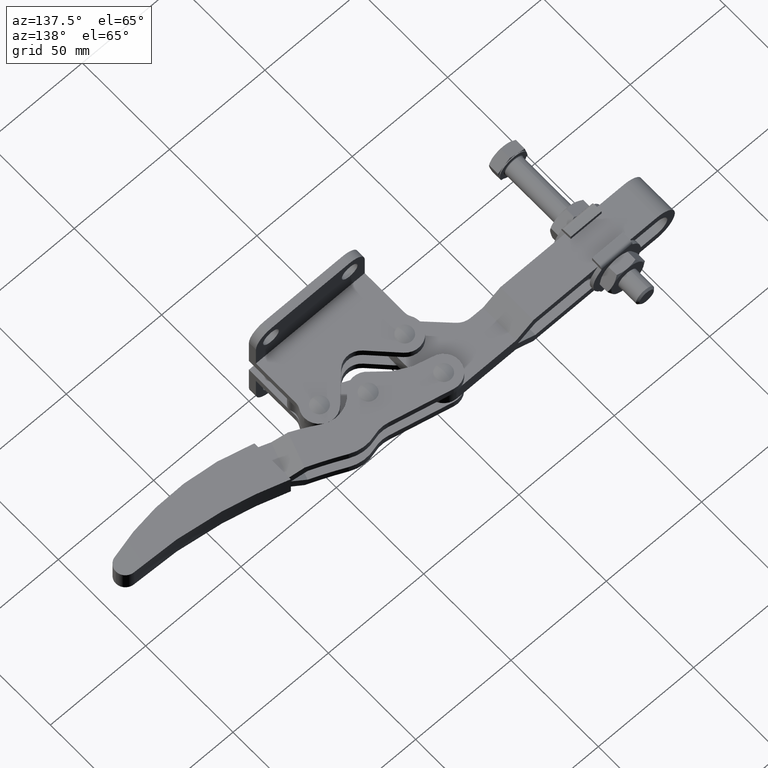
[diagram: clean part render]
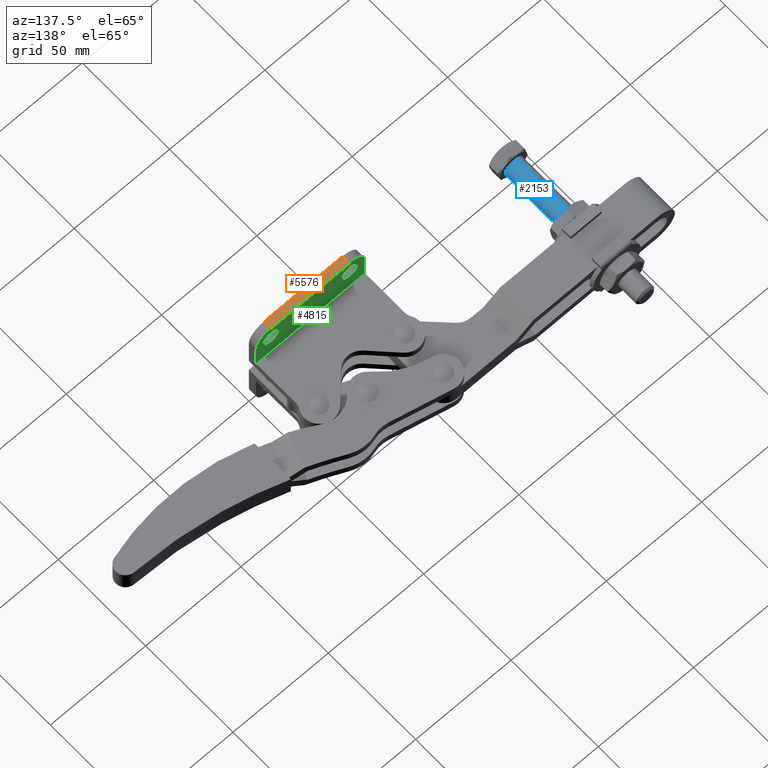
[diagram: same view with three faces highlighted in distinct colors, each labeled with its STEP entity id]
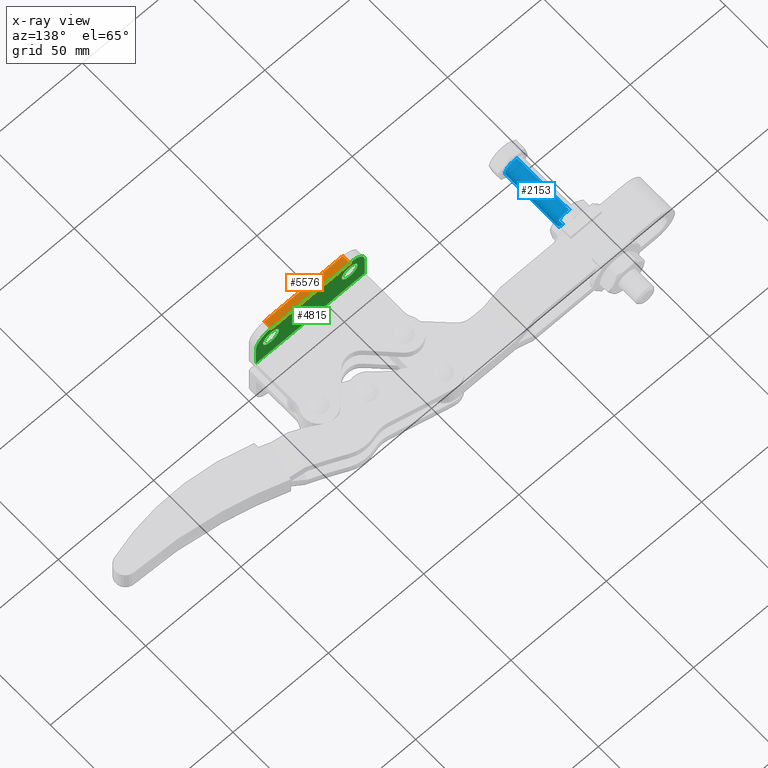
[diagram: x-ray of the same camera — body ghosted, the three highlighted faces saturated]
A machine part, auxiliary view with three faces highlighted in distinct colors.
The next image is the same camera in x-ray (body ghosted, the three faces saturated) — at least one of them is partly hidden behind the body in this view.
Their STEP definitions:

[orange] entity #5576 — the highlighted planar face has unit normal (-0, 0, 1).
#433 = CARTESIAN_POINT ( 'NONE',  ( -7.950000000000054400, 4.000000000000000000, 24.59999999999990500 ) ) ;
#499 = PLANE ( 'NONE',  #6251 ) ;
#1027 = ORIENTED_EDGE ( 'NONE', *, *, #6109, .F. ) ;
#1246 = ORIENTED_EDGE ( 'NONE', *, *, #8099, .F. ) ;
#1365 = DIRECTION ( 'NONE',  ( -7.073629707866492300E-015, 0.0000000000000000000, 1.000000000000000000 ) ) ;
#1386 = ORIENTED_EDGE ( 'NONE', *, *, #3077, .T. ) ;
#1631 = VERTEX_POINT ( 'NONE', #8105 ) ;
#1785 = CARTESIAN_POINT ( 'NONE',  ( -49.15000000000062400, 4.000000000000000000, 24.59999999999961400 ) ) ;
#2095 = VECTOR ( 'NONE', #3051, 1000.000000000000000 ) ;
#2903 = CARTESIAN_POINT ( 'NONE',  ( -7.950000000000054400, 4.000000000000000000, 24.59999999999990500 ) ) ;
#3051 = DIRECTION ( 'NONE',  ( -1.000000000000000000, 0.0000000000000000000, -7.073629707866493900E-015 ) ) ;
#3077 = EDGE_CURVE ( 'NONE', #1631, #10489, #8617, .T. ) ;
#3885 = FACE_OUTER_BOUND ( 'NONE', #8575, .T. ) ;
#3911 = EDGE_CURVE ( 'NONE', #10489, #5930, #10694, .T. ) ;
#4214 = VECTOR ( 'NONE', #10713, 1000.000000000000000 ) ;
#4338 = LINE ( 'NONE', #8125, #2095 ) ;
#4623 = VECTOR ( 'NONE', #9247, 1000.000000000000000 ) ;
#5073 = VECTOR ( 'NONE', #7985, 1000.000000000000000 ) ;
#5365 = CARTESIAN_POINT ( 'NONE',  ( -49.15000000000062400, 0.0000000000000000000, 24.59999999999961400 ) ) ;
#5499 = VERTEX_POINT ( 'NONE', #6352 ) ;
#5576 = ADVANCED_FACE ( 'NONE', ( #3885 ), #499, .T. ) ;
#5657 = ORIENTED_EDGE ( 'NONE', *, *, #3911, .T. ) ;
#5930 = VERTEX_POINT ( 'NONE', #5365 ) ;
#6109 = EDGE_CURVE ( 'NONE', #5499, #5930, #4338, .T. ) ;
#6251 = AXIS2_PLACEMENT_3D ( 'NONE', #433, #1365, #7291 ) ;
#6352 = CARTESIAN_POINT ( 'NONE',  ( -7.950000000000054400, 0.0000000000000000000, 24.59999999999990500 ) ) ;
#7291 = DIRECTION ( 'NONE',  ( 1.000000000000000000, 0.0000000000000000000, 7.073629707866492300E-015 ) ) ;
#7985 = DIRECTION ( 'NONE',  ( 0.0000000000000000000, -1.000000000000000000, 0.0000000000000000000 ) ) ;
#8099 = EDGE_CURVE ( 'NONE', #1631, #5499, #9557, .T. ) ;
#8105 = CARTESIAN_POINT ( 'NONE',  ( -7.950000000000054400, 4.000000000000000000, 24.59999999999990500 ) ) ;
#8125 = CARTESIAN_POINT ( 'NONE',  ( -7.950000000000054400, 0.0000000000000000000, 24.59999999999990500 ) ) ;
#8575 = EDGE_LOOP ( 'NONE', ( #1027, #1246, #1386, #5657 ) ) ;
#8617 = LINE ( 'NONE', #10138, #4623 ) ;
#9247 = DIRECTION ( 'NONE',  ( -1.000000000000000000, 0.0000000000000000000, -7.073629707866493900E-015 ) ) ;
#9557 = LINE ( 'NONE', #2903, #5073 ) ;
#10138 = CARTESIAN_POINT ( 'NONE',  ( -7.950000000000054400, 4.000000000000000000, 24.59999999999990500 ) ) ;
#10489 = VERTEX_POINT ( 'NONE', #1785 ) ;
#10680 = CARTESIAN_POINT ( 'NONE',  ( -49.15000000000062400, 4.000000000000000000, 24.59999999999961400 ) ) ;
#10694 = LINE ( 'NONE', #10680, #4214 ) ;
#10713 = DIRECTION ( 'NONE',  ( 0.0000000000000000000, -1.000000000000000000, 0.0000000000000000000 ) ) ;

[blue] entity #2153 — the highlighted cylindrical surface (edge-blend (fillet) strip) has radius 4.7625 mm, axis along (-0, -1, -0).
#578 = AXIS2_PLACEMENT_3D ( 'NONE', #7460, #2362, #8306 ) ;
#608 = CIRCLE ( 'NONE', #846, 4.762499999999999300 ) ;
#640 = CARTESIAN_POINT ( 'NONE',  ( -131.6233444428555400, 36.40016330380580500, -8.504533068422807300 ) ) ;
#813 = VERTEX_POINT ( 'NONE', #4532 ) ;
#846 = AXIS2_PLACEMENT_3D ( 'NONE', #9992, #4938, #10842 ) ;
#1133 = ORIENTED_EDGE ( 'NONE', *, *, #4627, .T. ) ;
#1206 = DIRECTION ( 'NONE',  ( 0.3246514797115520600, -6.567718493805863600E-007, -0.9458337151532865100 ) ) ;
#1347 = DIRECTION ( 'NONE',  ( -2.023005870746064400E-006, -0.9999999999979536400, -2.497889573746768000E-017 ) ) ;
#2153 = ADVANCED_FACE ( 'NONE', ( #8118 ), #7330, .T. ) ;
#2346 = DIRECTION ( 'NONE',  ( -2.023005870746064400E-006, -0.9999999999979536400, -2.497889573746768000E-017 ) ) ;
#2362 = DIRECTION ( 'NONE',  ( 2.023005870842905600E-006, 0.9999999999979538600, 1.110223024625156500E-016 ) ) ;
#2416 = CARTESIAN_POINT ( 'NONE',  ( -134.7156497871080800, 36.40016955955767500, 0.5045330684122452100 ) ) ;
#2558 = VECTOR ( 'NONE', #2346, 1000.000000000000100 ) ;
#3129 = ORIENTED_EDGE ( 'NONE', *, *, #8592, .F. ) ;
#3513 = CIRCLE ( 'NONE', #578, 4.762500000000005500 ) ;
#3728 = AXIS2_PLACEMENT_3D ( 'NONE', #6306, #5370, #1206 ) ;
#3999 = LINE ( 'NONE', #10638, #6006 ) ;
#4532 = CARTESIAN_POINT ( 'NONE',  ( -134.7157101673850300, 6.553357017050742300, 0.5045330684122488800 ) ) ;
#4588 = VERTEX_POINT ( 'NONE', #640 ) ;
#4627 = EDGE_CURVE ( 'NONE', #813, #6419, #608, .T. ) ;
#4938 = DIRECTION ( 'NONE',  ( 2.023005870746064800E-006, 0.9999999999979537500, 2.497889573746768300E-017 ) ) ;
#5094 = CARTESIAN_POINT ( 'NONE',  ( -131.6234048231325500, 6.553350761298875500, -8.504533068422803800 ) ) ;
#5370 = DIRECTION ( 'NONE',  ( -2.023005870746064800E-006, -0.9999999999979537500, -2.497889573746768300E-017 ) ) ;
#5647 = EDGE_CURVE ( 'NONE', #8265, #813, #7080, .T. ) ;
#6006 = VECTOR ( 'NONE', #1347, 1000.000000000000100 ) ;
#6306 = CARTESIAN_POINT ( 'NONE',  ( -133.1695707524208700, 0.0001538891882176914500, -4.000000000005282000 ) ) ;
#6419 = VERTEX_POINT ( 'NONE', #5094 ) ;
#7080 = LINE ( 'NONE', #9926, #2558 ) ;
#7205 = EDGE_CURVE ( 'NONE', #8265, #4588, #3513, .T. ) ;
#7330 = CYLINDRICAL_SURFACE ( 'NONE', #3728, 4.762499999999999300 ) ;
#7460 = CARTESIAN_POINT ( 'NONE',  ( -133.1694971149817900, 36.40016643168174700, -4.000000000005281100 ) ) ;
#8118 = FACE_OUTER_BOUND ( 'NONE', #9263, .T. ) ;
#8264 = ORIENTED_EDGE ( 'NONE', *, *, #5647, .T. ) ;
#8265 = VERTEX_POINT ( 'NONE', #2416 ) ;
#8306 = DIRECTION ( 'NONE',  ( -0.9999999999979537500, 2.023005870433349500E-006, 0.0000000000000000000 ) ) ;
#8592 = EDGE_CURVE ( 'NONE', #4588, #6419, #3999, .T. ) ;
#9263 = EDGE_LOOP ( 'NONE', ( #9484, #8264, #1133, #3129 ) ) ;
#9484 = ORIENTED_EDGE ( 'NONE', *, *, #7205, .F. ) ;
#9926 = CARTESIAN_POINT ( 'NONE',  ( -134.7157234245471200, 0.0001570170641503664900, 0.5045330684122443200 ) ) ;
#9992 = CARTESIAN_POINT ( 'NONE',  ( -133.1695574952588000, 6.553353889174808900, -4.000000000005282000 ) ) ;
#10638 = CARTESIAN_POINT ( 'NONE',  ( -131.6234180802945800, 0.0001507613122850164100, -8.504533068422809100 ) ) ;
#10842 = DIRECTION ( 'NONE',  ( -0.3246514797115520600, 6.567718494674128500E-007, 0.9458337151532865100 ) ) ;

[green] entity #4815 — the highlighted planar face has unit normal (0, -1, 0).
#19 = CARTESIAN_POINT ( 'NONE',  ( -49.15000000000056700, 4.000000000000000000, 16.64999999999960400 ) ) ;
#153 = EDGE_CURVE ( 'NONE', #10088, #1028, #6654, .T. ) ;
#164 = DIRECTION ( 'NONE',  ( 0.0000000000000000000, 0.0000000000000000000, -1.000000000000000000 ) ) ;
#255 = PLANE ( 'NONE',  #3455 ) ;
#455 = AXIS2_PLACEMENT_3D ( 'NONE', #864, #6792, #1698 ) ;
#478 = ORIENTED_EDGE ( 'NONE', *, *, #3077, .F. ) ;
#864 = CARTESIAN_POINT ( 'NONE',  ( -49.20000000000023000, 4.000000000000000000, 16.64999999999949100 ) ) ;
#876 = DIRECTION ( 'NONE',  ( 0.0000000000000000000, 0.0000000000000000000, -1.000000000000000000 ) ) ;
#1028 = VERTEX_POINT ( 'NONE', #3301 ) ;
#1134 = DIRECTION ( 'NONE',  ( 0.0000000000000000000, -1.000000000000000000, 0.0000000000000000000 ) ) ;
#1412 = CARTESIAN_POINT ( 'NONE',  ( -7.900000000000337000, 4.000000000000000000, 16.64999999999978200 ) ) ;
#1521 = EDGE_CURVE ( 'NONE', #1028, #10088, #4145, .T. ) ;
#1631 = VERTEX_POINT ( 'NONE', #8105 ) ;
#1698 = DIRECTION ( 'NONE',  ( 0.0000000000000000000, 0.0000000000000000000, -1.000000000000000000 ) ) ;
#1785 = CARTESIAN_POINT ( 'NONE',  ( -49.15000000000062400, 4.000000000000000000, 24.59999999999961400 ) ) ;
#1833 = CARTESIAN_POINT ( 'NONE',  ( -57.10000000000067600, 4.000000000000000000, 3.999999999999607900 ) ) ;
#2001 = DIRECTION ( 'NONE',  ( -7.679408273098941700E-015, -0.0000000000000000000, 1.000000000000000000 ) ) ;
#2022 = DIRECTION ( 'NONE',  ( 0.0000000000000000000, -1.000000000000000000, 0.0000000000000000000 ) ) ;
#2130 = AXIS2_PLACEMENT_3D ( 'NONE', #8210, #3146, #9053 ) ;
#2244 = CIRCLE ( 'NONE', #455, 4.150000000000083800 ) ;
#2372 = LINE ( 'NONE', #8420, #6648 ) ;
#2434 = CARTESIAN_POINT ( 'NONE',  ( -49.20000000000023000, 4.000000000000000000, 20.79999999999957400 ) ) ;
#2477 = DIRECTION ( 'NONE',  ( 0.0000000000000000000, 0.0000000000000000000, -1.000000000000000000 ) ) ;
#2593 = VERTEX_POINT ( 'NONE', #10324 ) ;
#2988 = FACE_BOUND ( 'NONE', #8112, .T. ) ;
#3022 = CARTESIAN_POINT ( 'NONE',  ( -49.20000000000023000, 4.000000000000000000, 12.49999999999940700 ) ) ;
#3056 = EDGE_CURVE ( 'NONE', #2593, #9961, #2372, .T. ) ;
#3077 = EDGE_CURVE ( 'NONE', #1631, #10489, #8617, .T. ) ;
#3083 = ORIENTED_EDGE ( 'NONE', *, *, #4065, .F. ) ;
#3146 = DIRECTION ( 'NONE',  ( 0.0000000000000000000, -1.000000000000000000, 0.0000000000000000000 ) ) ;
#3280 = CIRCLE ( 'NONE', #8289, 7.950000000000061500 ) ;
#3301 = CARTESIAN_POINT ( 'NONE',  ( -7.900000000000337000, 4.000000000000000000, 12.49999999999968600 ) ) ;
#3455 = AXIS2_PLACEMENT_3D ( 'NONE', #9543, #1134, #7043 ) ;
#3457 = ORIENTED_EDGE ( 'NONE', *, *, #153, .T. ) ;
#3483 = ORIENTED_EDGE ( 'NONE', *, *, #9649, .F. ) ;
#3875 = VERTEX_POINT ( 'NONE', #3022 ) ;
#4003 = ORIENTED_EDGE ( 'NONE', *, *, #3056, .F. ) ;
#4065 = EDGE_CURVE ( 'NONE', #10489, #2593, #3280, .T. ) ;
#4145 = CIRCLE ( 'NONE', #10253, 4.150000000000098100 ) ;
#4251 = EDGE_CURVE ( 'NONE', #10105, #9838, #8833, .T. ) ;
#4623 = VECTOR ( 'NONE', #9247, 1000.000000000000000 ) ;
#4815 = ADVANCED_FACE ( 'NONE', ( #2988, #7237, #4984 ), #255, .F. ) ;
#4939 = EDGE_LOOP ( 'NONE', ( #3483, #6808, #6609, #4003, #3083, #478 ) ) ;
#4984 = FACE_OUTER_BOUND ( 'NONE', #4939, .T. ) ;
#4992 = EDGE_LOOP ( 'NONE', ( #10435, #5771 ) ) ;
#5071 = CARTESIAN_POINT ( 'NONE',  ( -9.714451465470119700E-014, 4.000000000000000000, 16.64999999999994900 ) ) ;
#5248 = DIRECTION ( 'NONE',  ( 0.0000000000000000000, -1.000000000000000000, 0.0000000000000000000 ) ) ;
#5315 = CIRCLE ( 'NONE', #9513, 7.949999999999956700 ) ;
#5748 = ORIENTED_EDGE ( 'NONE', *, *, #1521, .T. ) ;
#5771 = ORIENTED_EDGE ( 'NONE', *, *, #6763, .T. ) ;
#5953 = DIRECTION ( 'NONE',  ( 0.0000000000000000000, -1.000000000000000000, 0.0000000000000000000 ) ) ;
#5972 = DIRECTION ( 'NONE',  ( 1.000000000000000000, 0.0000000000000000000, 6.926741725441459900E-015 ) ) ;
#6609 = ORIENTED_EDGE ( 'NONE', *, *, #8872, .F. ) ;
#6610 = CIRCLE ( 'NONE', #2130, 4.150000000000083800 ) ;
#6648 = VECTOR ( 'NONE', #2477, 1000.000000000000000 ) ;
#6654 = CIRCLE ( 'NONE', #7838, 4.150000000000098100 ) ;
#6763 = EDGE_CURVE ( 'NONE', #9363, #3875, #6610, .T. ) ;
#6792 = DIRECTION ( 'NONE',  ( 0.0000000000000000000, -1.000000000000000000, 0.0000000000000000000 ) ) ;
#6808 = ORIENTED_EDGE ( 'NONE', *, *, #4251, .F. ) ;
#7043 = DIRECTION ( 'NONE',  ( 0.0000000000000000000, -0.0000000000000000000, -1.000000000000000000 ) ) ;
#7110 = CARTESIAN_POINT ( 'NONE',  ( -7.949999999999998400, 4.000000000000000000, 16.64999999999989600 ) ) ;
#7237 = FACE_BOUND ( 'NONE', #4992, .T. ) ;
#7346 = DIRECTION ( 'NONE',  ( 0.0000000000000000000, 0.0000000000000000000, -1.000000000000000000 ) ) ;
#7595 = LINE ( 'NONE', #10144, #9546 ) ;
#7838 = AXIS2_PLACEMENT_3D ( 'NONE', #1412, #10695, #7346 ) ;
#7947 = DIRECTION ( 'NONE',  ( 0.0000000000000000000, 0.0000000000000000000, -1.000000000000000000 ) ) ;
#8060 = CARTESIAN_POINT ( 'NONE',  ( -7.900000000000337000, 4.000000000000000000, 20.79999999999988000 ) ) ;
#8105 = CARTESIAN_POINT ( 'NONE',  ( -7.950000000000054400, 4.000000000000000000, 24.59999999999990500 ) ) ;
#8112 = EDGE_LOOP ( 'NONE', ( #5748, #3457 ) ) ;
#8210 = CARTESIAN_POINT ( 'NONE',  ( -49.20000000000023000, 4.000000000000000000, 16.64999999999949100 ) ) ;
#8289 = AXIS2_PLACEMENT_3D ( 'NONE', #19, #5953, #876 ) ;
#8303 = VECTOR ( 'NONE', #2001, 1000.000000000000000 ) ;
#8420 = CARTESIAN_POINT ( 'NONE',  ( -57.10000000000067600, 4.000000000000000000, 16.64999999999921300 ) ) ;
#8617 = LINE ( 'NONE', #10138, #4623 ) ;
#8783 = CARTESIAN_POINT ( 'NONE',  ( -9.714451465470119700E-014, 4.000000000000000000, 16.64999999999994900 ) ) ;
#8833 = LINE ( 'NONE', #8783, #8303 ) ;
#8872 = EDGE_CURVE ( 'NONE', #9961, #10105, #7595, .T. ) ;
#8899 = CARTESIAN_POINT ( 'NONE',  ( 0.0000000000000000000, 4.000000000000000000, 4.000000000000000000 ) ) ;
#9053 = DIRECTION ( 'NONE',  ( 0.0000000000000000000, 0.0000000000000000000, -1.000000000000000000 ) ) ;
#9247 = DIRECTION ( 'NONE',  ( -1.000000000000000000, 0.0000000000000000000, -7.073629707866493900E-015 ) ) ;
#9363 = VERTEX_POINT ( 'NONE', #2434 ) ;
#9513 = AXIS2_PLACEMENT_3D ( 'NONE', #7110, #2022, #7947 ) ;
#9543 = CARTESIAN_POINT ( 'NONE',  ( -7.949999999999998400, 4.000000000000000000, 16.64999999999989600 ) ) ;
#9546 = VECTOR ( 'NONE', #5972, 1000.000000000000000 ) ;
#9649 = EDGE_CURVE ( 'NONE', #9838, #1631, #5315, .T. ) ;
#9838 = VERTEX_POINT ( 'NONE', #5071 ) ;
#9961 = VERTEX_POINT ( 'NONE', #1833 ) ;
#10088 = VERTEX_POINT ( 'NONE', #8060 ) ;
#10105 = VERTEX_POINT ( 'NONE', #8899 ) ;
#10138 = CARTESIAN_POINT ( 'NONE',  ( -7.950000000000054400, 4.000000000000000000, 24.59999999999990500 ) ) ;
#10144 = CARTESIAN_POINT ( 'NONE',  ( -57.10000000000067600, 4.000000000000000000, 3.999999999999607900 ) ) ;
#10253 = AXIS2_PLACEMENT_3D ( 'NONE', #10299, #5248, #164 ) ;
#10299 = CARTESIAN_POINT ( 'NONE',  ( -7.900000000000337000, 4.000000000000000000, 16.64999999999978200 ) ) ;
#10324 = CARTESIAN_POINT ( 'NONE',  ( -57.10000000000062700, 4.000000000000000000, 16.64999999999921300 ) ) ;
#10435 = ORIENTED_EDGE ( 'NONE', *, *, #10943, .T. ) ;
#10489 = VERTEX_POINT ( 'NONE', #1785 ) ;
#10695 = DIRECTION ( 'NONE',  ( 0.0000000000000000000, -1.000000000000000000, 0.0000000000000000000 ) ) ;
#10943 = EDGE_CURVE ( 'NONE', #3875, #9363, #2244, .T. ) ;